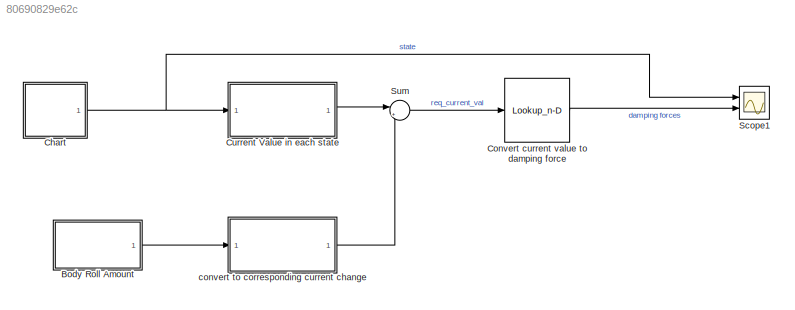
MODEL slx_80690829e62c
KIND model
CONFIG AbsTol = auto
CONFIG EnableMultiTasking = off
CONFIG FixedStep = auto
CONFIG MaxStep = auto
CONFIG MinStep = auto
CONFIG PreLoadFcn = data_file
CONFIG RelTol = 1e-3
CONFIG SampleTimeConstraint = Unconstrained
CONFIG Solver = ode45
CONFIG SolverName = ode45
CONFIG StartTime = 0.0
CONFIG StopTime = 50
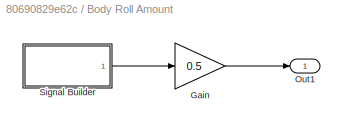
BLOCK [SubSystem] Body Roll Amount
  Ports = [0, 1]
  RequestExecContextInheritance = off
BLOCK [Gain] Body Roll Amount/Gain
  Gain = 0.5
BLOCK [Outport] Body Roll Amount/Out1
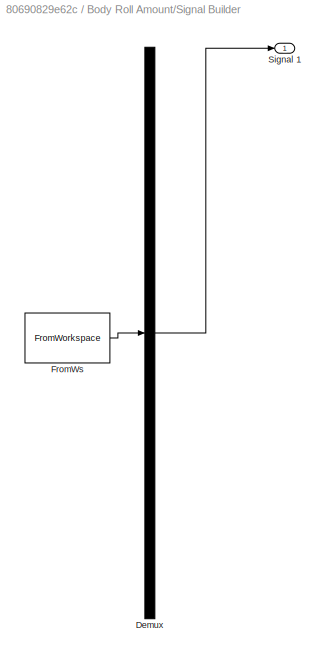
BLOCK [SubSystem] Body Roll Amount/Signal Builder
  ClipboardFcn = sigbuilder_block('clipboard');
  CloseFcn = sigbuilder_block('close');
  ContinueFcn = sigbuilder_block('continue');
  CopyFcn = sigbuilder_block('copy');
  DeleteFcn = sigbuilder_block('delete');
  LoadFcn = sigbuilder_block('load');
  MaskHideContents = on
  ModelCloseFcn = sigbuilder_block('modelClose');
  NameChangeFcn = sigbuilder_block('namechange');
  OpenFcn = sigbuilder_block('open',[437.6 153 550.4 359.25 ]);
  PauseFcn = sigbuilder_block('pause');
  Ports = [0, 1]
  PreSaveFcn = sigbuilder_block('preSave');
  RequestExecContextInheritance = off
  StartFcn = sigbuilder_block('start');
  StopFcn = sigbuilder_block('stop');
  Tag = STV Subsys
BLOCK [Demux] Body Roll Amount/Signal Builder/Demux
  DisplayOption = none
  Outputs = 1
  Ports = [1, 1]
  Tag = STV Demux
BLOCK [FromWorkspace] Body Roll Amount/Signal Builder/FromWs
  Tag = STV FromWs
  VariableName = tuvar
BLOCK [Outport] Body Roll Amount/Signal Builder/Signal 1
  Tag = STV Outport
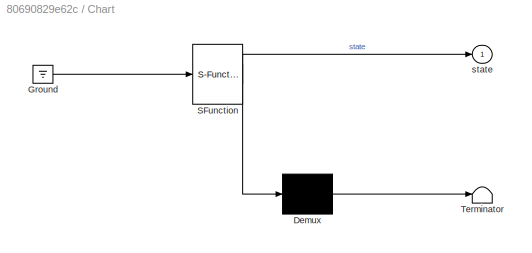
BLOCK [SubSystem] Chart
  ErrorFcn = Stateflow.Translate.translate
  PermitHierarchicalResolution = ExplicitOnly
  Ports = [0, 1]
  RequestExecContextInheritance = off
  SFBlockType = Chart
  TreatAsAtomicUnit = on
BLOCK [Demux] Chart/ Demux 
  Outputs = 1
  Ports = [1, 1]
BLOCK [Ground] Chart/ Ground 
BLOCK [S-Function] Chart/ SFunction 
  EnableBusSupport = on
  FunctionName = sf_sfun
  PortCounts = [1 2]
  Ports = [1, 2]
  SFcnIsStateOwnerBlock = off
  SFunctionDeploymentMode = off
  Tag = Stateflow S-Function 3
BLOCK [Terminator] Chart/ Terminator 
BLOCK [Outport] Chart/state
BLOCK [Lookup_n-D] Convert current value to damping force
  BreakpointsForDimension1 = current
  InternalRulePriority = Speed
  NumberOfTableDimensions = 1
  Ports = [1, 1]
  RndMeth = Simplest
  Table = d_force
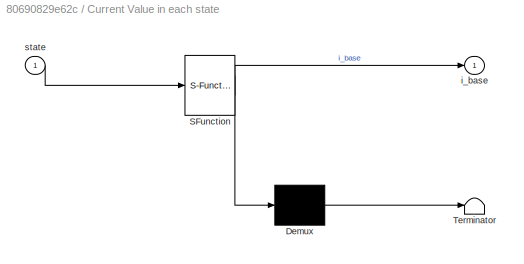
BLOCK [SubSystem] Current Value in each state
  ErrorFcn = Stateflow.Translate.translate
  PermitHierarchicalResolution = ExplicitOnly
  Ports = [1, 1]
  RequestExecContextInheritance = off
  SFBlockType = MATLAB Function
  TreatAsAtomicUnit = on
BLOCK [Demux] Current Value in each state/ Demux 
  Outputs = 1
  Ports = [1, 1]
BLOCK [S-Function] Current Value in each state/ SFunction 
  EnableBusSupport = on
  FunctionName = sf_sfun
  PortCounts = [1 2]
  Ports = [1, 2]
  SFcnIsStateOwnerBlock = off
  SFunctionDeploymentMode = off
  Tag = Stateflow S-Function 2
BLOCK [Terminator] Current Value in each state/ Terminator 
BLOCK [Outport] Current Value in each state/i_base
BLOCK [Inport] Current Value in each state/state
BLOCK [Scope] Scope1
  Floating = off
  NumInputPorts = 2
  Ports = [2]
  ScopeSpecificationString = Simulink.scopes.TimeScopeBlockCfg('CurrentConfiguration', extmgr.ConfigurationSet(extmgr.Configuration('Core','General UI',true),extmgr.Configuration('Core','Source UI',true),extmgr.Configuration('Sources','WiredSimulink',true,'DataLoggingVariableName','ScopeData1'),extmgr.Configuration('Visuals','Time Domain',true,'SerializedDisplays',{struct('MinYLimReal','-0.25','MaxYLimReal','2.25','YLabelReal...<+1989ch>
BLOCK [Sum] Sum
  Inputs = |++
  Ports = [2, 1]
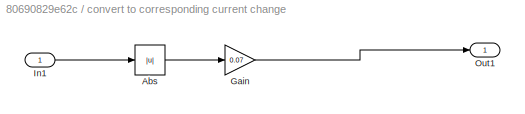
BLOCK [SubSystem] convert to corresponding current change
  Ports = [1, 1]
  RequestExecContextInheritance = off
BLOCK [Abs] convert to corresponding current change/Abs
  SaturateOnIntegerOverflow = off
BLOCK [Gain] convert to corresponding current change/Gain
  Gain = 0.07
BLOCK [Inport] convert to corresponding current change/In1
BLOCK [Outport] convert to corresponding current change/Out1
LINE Body Roll Amount/Gain:1 -> Body Roll Amount/Out1:1
LINE Body Roll Amount/Signal Builder:1 -> Body Roll Amount/Gain:1
LINE Body Roll Amount:1 -> convert to corresponding current change:1
NET Chart:1 -> Current Value in each state:1, Scope1:1
LINE Convert current value to damping force:1 -> Scope1:2
LINE Current Value in each state:1 -> Sum:1
LINE Sum:1 -> Convert current value to damping force:1
LINE convert to corresponding current change/Abs:1 -> convert to corresponding current change/Gain:1
LINE convert to corresponding current change/Gain:1 -> convert to corresponding current change/Out1:1
LINE convert to corresponding current change/In1:1 -> convert to corresponding current change/Abs:1
LINE convert to corresponding current change:1 -> Sum:2
note: NET lines group one-source signal fan-out (src -> all destinations, sorted); 1:1 wires keep LINE
CHART Current Value
in each state states=1 transitions=1
  STATE_LABEL 'eML_blk_kernel()'
  STATE_LABEL 'SCRIPT:\n% This function is used to set the base current value in the MR damper\n% solenoid\n\nfunction i_base = fcn(state)\n\nif (state == 0)\n    i_base = 0.3;\nelseif (state == 1)\n    i_base = 0.5;\nelse\n    i_base = 0.7;\nend\n\nend\n'
CHART Chart states=3 transitions=4
  STATE_LABEL 'Comfort\nduring:\nstate = 0;'
  STATE_LABEL 'Sport\nduring:\nstate = 1;'
  STATE_LABEL 'Sport_plus\nduring:\nstate = 2;'
CHART  states=0 transitions=0
CHART  states=0 transitions=0
